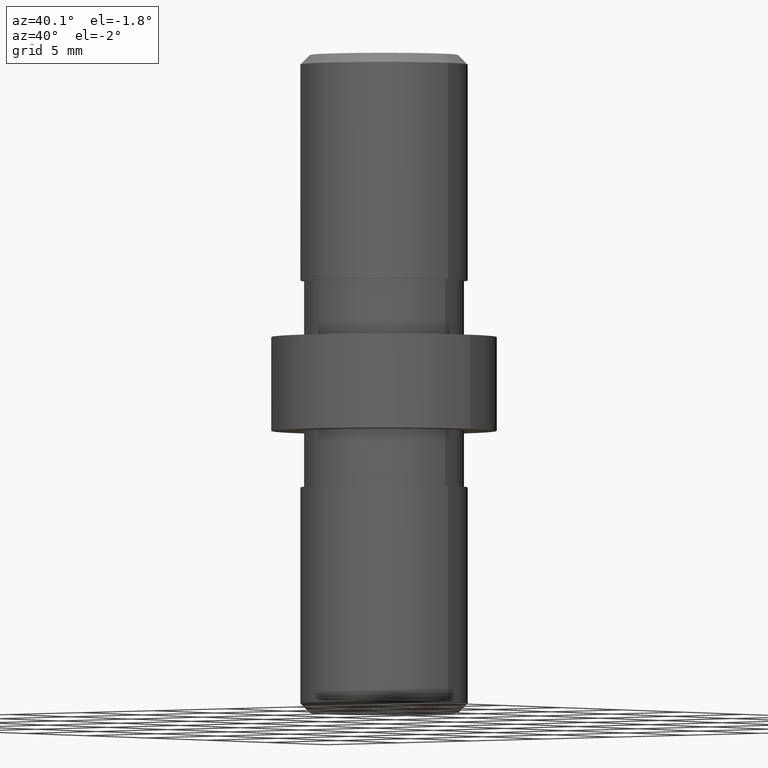
[diagram: clean part render]
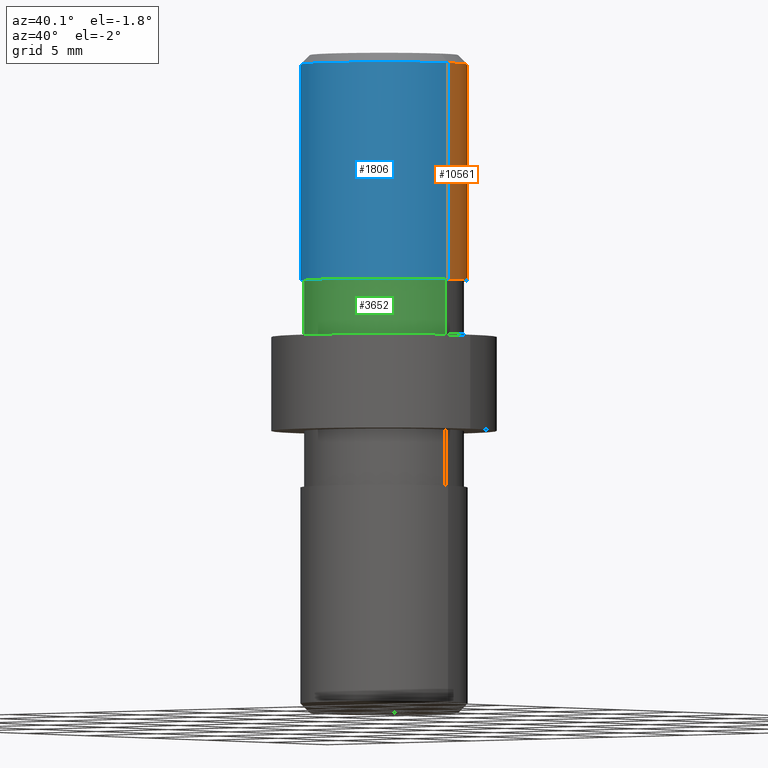
[diagram: same view with three faces highlighted in distinct colors, each labeled with its STEP entity id]
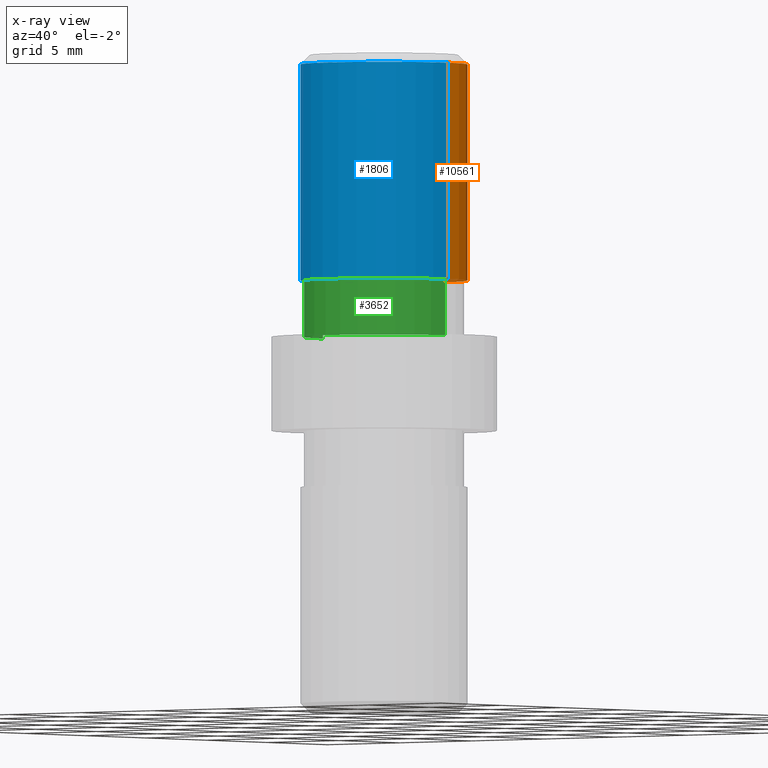
[diagram: x-ray of the same camera — body ghosted, the three highlighted faces saturated]
A machine part, auxiliary view with three faces highlighted in distinct colors.
The next image is the same camera in x-ray (body ghosted, the three faces saturated) — at least one of them is partly hidden behind the body in this view.
Their STEP definitions:

[orange] entity #10561 — the highlighted cylindrical surface (partial cylindrical patch) has radius 4.45 mm, axis along (-0, -0, -1).
#93 = ORIENTED_EDGE ( 'NONE', *, *, #10588, .F. ) ;
#503 = ORIENTED_EDGE ( 'NONE', *, *, #7556, .T. ) ;
#632 = CARTESIAN_POINT ( 'NONE',  ( 4.449999999999999289, -1.598164072887296760E-15, 5.499999999999998224 ) ) ;
#903 = DIRECTION ( 'NONE',  ( 1.000000000000000000, 0.000000000000000000, 0.000000000000000000 ) ) ;
#1424 = VECTOR ( 'NONE', #7498, 1000.000000000000000 ) ;
#1605 = VERTEX_POINT ( 'NONE', #11848 ) ;
#1797 = FACE_OUTER_BOUND ( 'NONE', #9500, .T. ) ;
#2090 = CARTESIAN_POINT ( 'NONE',  ( -4.449999999999999289, -2.143131898507868643E-15, -17.50000000000000000 ) ) ;
#2997 = EDGE_CURVE ( 'NONE', #8472, #7463, #7925, .T. ) ;
#4191 = CYLINDRICAL_SURFACE ( 'NONE', #7689, 4.449999999999999289 ) ;
#4203 = VERTEX_POINT ( 'NONE', #632 ) ;
#4276 = CARTESIAN_POINT ( 'NONE',  ( 0.000000000000000000, -2.143131898507868643E-15, 5.499999999999998224 ) ) ;
#4322 = CARTESIAN_POINT ( 'NONE',  ( 4.449999999999999289, -1.598164072887296760E-15, -17.50000000000000000 ) ) ;
#4621 = AXIS2_PLACEMENT_3D ( 'NONE', #11736, #9395, #903 ) ;
#4699 = ORIENTED_EDGE ( 'NONE', *, *, #13395, .T. ) ;
#4925 = LINE ( 'NONE', #4322, #13234 ) ;
#6449 = DIRECTION ( 'NONE',  ( -0.000000000000000000, -0.000000000000000000, -1.000000000000000000 ) ) ;
#7463 = VERTEX_POINT ( 'NONE', #10021 ) ;
#7498 = DIRECTION ( 'NONE',  ( -0.000000000000000000, -0.000000000000000000, -1.000000000000000000 ) ) ;
#7556 = EDGE_CURVE ( 'NONE', #1605, #4203, #4925, .T. ) ;
#7599 = CIRCLE ( 'NONE', #4621, 4.449999999999999289 ) ;
#7686 = DIRECTION ( 'NONE',  ( -0.000000000000000000, -0.000000000000000000, -1.000000000000000000 ) ) ;
#7689 = AXIS2_PLACEMENT_3D ( 'NONE', #10667, #6449, #13013 ) ;
#7925 = LINE ( 'NONE', #2090, #1424 ) ;
#8472 = VERTEX_POINT ( 'NONE', #12406 ) ;
#9395 = DIRECTION ( 'NONE',  ( -0.000000000000000000, -0.000000000000000000, -1.000000000000000000 ) ) ;
#9500 = EDGE_LOOP ( 'NONE', ( #4699, #503, #93, #12823 ) ) ;
#9776 = DIRECTION ( 'NONE',  ( -0.000000000000000000, -0.000000000000000000, -1.000000000000000000 ) ) ;
#10021 = CARTESIAN_POINT ( 'NONE',  ( -4.449999999999999289, -2.143131898507868643E-15, 5.499999999999998224 ) ) ;
#10117 = CIRCLE ( 'NONE', #10354, 4.449999999999999289 ) ;
#10354 = AXIS2_PLACEMENT_3D ( 'NONE', #4276, #9776, #11876 ) ;
#10561 = ADVANCED_FACE ( 'NONE', ( #1797 ), #4191, .T. ) ;
#10588 = EDGE_CURVE ( 'NONE', #7463, #4203, #10117, .T. ) ;
#10667 = CARTESIAN_POINT ( 'NONE',  ( 0.000000000000000000, -2.143131898507868643E-15, -17.50000000000000000 ) ) ;
#11736 = CARTESIAN_POINT ( 'NONE',  ( 0.000000000000000000, -2.143131898507868643E-15, 17.00000000000000000 ) ) ;
#11848 = CARTESIAN_POINT ( 'NONE',  ( 4.449999999999999289, -1.598164072887296760E-15, 17.00000000000000000 ) ) ;
#11876 = DIRECTION ( 'NONE',  ( -1.000000000000000000, 0.000000000000000000, 0.000000000000000000 ) ) ;
#12406 = CARTESIAN_POINT ( 'NONE',  ( -4.449999999999999289, -2.143131898507868643E-15, 17.00000000000000000 ) ) ;
#12823 = ORIENTED_EDGE ( 'NONE', *, *, #2997, .F. ) ;
#13013 = DIRECTION ( 'NONE',  ( -1.000000000000000000, 0.000000000000000000, 0.000000000000000000 ) ) ;
#13234 = VECTOR ( 'NONE', #7686, 1000.000000000000000 ) ;
#13395 = EDGE_CURVE ( 'NONE', #8472, #1605, #7599, .T. ) ;

[blue] entity #1806 — the highlighted cylindrical surface (partial cylindrical patch) has radius 4.45 mm, axis along (-0, -0, -1).
#632 = CARTESIAN_POINT ( 'NONE',  ( 4.449999999999999289, -1.598164072887296760E-15, 5.499999999999998224 ) ) ;
#1008 = EDGE_LOOP ( 'NONE', ( #6067, #9104, #11811, #10913 ) ) ;
#1146 = DIRECTION ( 'NONE',  ( -1.000000000000000000, 0.000000000000000000, 0.000000000000000000 ) ) ;
#1424 = VECTOR ( 'NONE', #7498, 1000.000000000000000 ) ;
#1605 = VERTEX_POINT ( 'NONE', #11848 ) ;
#1628 = CARTESIAN_POINT ( 'NONE',  ( 0.000000000000000000, -2.143131898507868643E-15, -17.50000000000000000 ) ) ;
#1707 = CIRCLE ( 'NONE', #10213, 4.449999999999999289 ) ;
#1765 = DIRECTION ( 'NONE',  ( -0.000000000000000000, -0.000000000000000000, -1.000000000000000000 ) ) ;
#1806 = ADVANCED_FACE ( 'NONE', ( #13475 ), #9552, .T. ) ;
#1855 = DIRECTION ( 'NONE',  ( -1.000000000000000000, 0.000000000000000000, 0.000000000000000000 ) ) ;
#2090 = CARTESIAN_POINT ( 'NONE',  ( -4.449999999999999289, -2.143131898507868643E-15, -17.50000000000000000 ) ) ;
#2132 = CARTESIAN_POINT ( 'NONE',  ( 0.000000000000000000, -2.143131898507868643E-15, 17.00000000000000000 ) ) ;
#2997 = EDGE_CURVE ( 'NONE', #8472, #7463, #7925, .T. ) ;
#3223 = DIRECTION ( 'NONE',  ( -0.000000000000000000, -0.000000000000000000, -1.000000000000000000 ) ) ;
#3478 = CARTESIAN_POINT ( 'NONE',  ( 0.000000000000000000, -2.143131898507868643E-15, 5.499999999999998224 ) ) ;
#4203 = VERTEX_POINT ( 'NONE', #632 ) ;
#4322 = CARTESIAN_POINT ( 'NONE',  ( 4.449999999999999289, -1.598164072887296760E-15, -17.50000000000000000 ) ) ;
#4925 = LINE ( 'NONE', #4322, #13234 ) ;
#5248 = EDGE_CURVE ( 'NONE', #1605, #8472, #1707, .T. ) ;
#6067 = ORIENTED_EDGE ( 'NONE', *, *, #7556, .F. ) ;
#7412 = AXIS2_PLACEMENT_3D ( 'NONE', #3478, #7707, #1146 ) ;
#7463 = VERTEX_POINT ( 'NONE', #10021 ) ;
#7498 = DIRECTION ( 'NONE',  ( -0.000000000000000000, -0.000000000000000000, -1.000000000000000000 ) ) ;
#7556 = EDGE_CURVE ( 'NONE', #1605, #4203, #4925, .T. ) ;
#7686 = DIRECTION ( 'NONE',  ( -0.000000000000000000, -0.000000000000000000, -1.000000000000000000 ) ) ;
#7707 = DIRECTION ( 'NONE',  ( -0.000000000000000000, -0.000000000000000000, -1.000000000000000000 ) ) ;
#7925 = LINE ( 'NONE', #2090, #1424 ) ;
#8472 = VERTEX_POINT ( 'NONE', #12406 ) ;
#9104 = ORIENTED_EDGE ( 'NONE', *, *, #5248, .T. ) ;
#9450 = CIRCLE ( 'NONE', #7412, 4.449999999999999289 ) ;
#9552 = CYLINDRICAL_SURFACE ( 'NONE', #12289, 4.449999999999999289 ) ;
#9672 = DIRECTION ( 'NONE',  ( 1.000000000000000000, 0.000000000000000000, 0.000000000000000000 ) ) ;
#10021 = CARTESIAN_POINT ( 'NONE',  ( -4.449999999999999289, -2.143131898507868643E-15, 5.499999999999998224 ) ) ;
#10131 = EDGE_CURVE ( 'NONE', #4203, #7463, #9450, .T. ) ;
#10213 = AXIS2_PLACEMENT_3D ( 'NONE', #2132, #3223, #9672 ) ;
#10913 = ORIENTED_EDGE ( 'NONE', *, *, #10131, .F. ) ;
#11811 = ORIENTED_EDGE ( 'NONE', *, *, #2997, .T. ) ;
#11848 = CARTESIAN_POINT ( 'NONE',  ( 4.449999999999999289, -1.598164072887296760E-15, 17.00000000000000000 ) ) ;
#12289 = AXIS2_PLACEMENT_3D ( 'NONE', #1628, #1765, #1855 ) ;
#12406 = CARTESIAN_POINT ( 'NONE',  ( -4.449999999999999289, -2.143131898507868643E-15, 17.00000000000000000 ) ) ;
#13234 = VECTOR ( 'NONE', #7686, 1000.000000000000000 ) ;
#13475 = FACE_OUTER_BOUND ( 'NONE', #1008, .T. ) ;

[green] entity #3652 — the highlighted cylindrical surface (partial cylindrical patch) has radius 4.25 mm, axis along (-0, -0, -1).
#61 = AXIS2_PLACEMENT_3D ( 'NONE', #13862, #7425, #7523 ) ;
#846 = ORIENTED_EDGE ( 'NONE', *, *, #10789, .F. ) ;
#1421 = CARTESIAN_POINT ( 'NONE',  ( 0.000000000000000000, -2.143131898507868643E-15, 2.499999999999998668 ) ) ;
#1674 = EDGE_CURVE ( 'NONE', #8316, #8799, #7046, .T. ) ;
#2431 = DIRECTION ( 'NONE',  ( -0.000000000000000000, -0.000000000000000000, -1.000000000000000000 ) ) ;
#2547 = CARTESIAN_POINT ( 'NONE',  ( 0.000000000000000000, -2.143131898507868643E-15, -17.50000000000000000 ) ) ;
#3074 = ORIENTED_EDGE ( 'NONE', *, *, #12246, .F. ) ;
#3652 = ADVANCED_FACE ( 'NONE', ( #6715 ), #9883, .T. ) ;
#3936 = CARTESIAN_POINT ( 'NONE',  ( 4.249999999999998224, -1.622657008870243868E-15, 5.499999999999998224 ) ) ;
#4267 = DIRECTION ( 'NONE',  ( -0.000000000000000000, -0.000000000000000000, -1.000000000000000000 ) ) ;
#4520 = CARTESIAN_POINT ( 'NONE',  ( -4.249999999999998224, -2.143131898507868643E-15, -17.50000000000000000 ) ) ;
#4746 = CARTESIAN_POINT ( 'NONE',  ( -4.249999999999998224, -2.143131898507868643E-15, 5.499999999999998224 ) ) ;
#5221 = CIRCLE ( 'NONE', #6943, 4.249999999999998224 ) ;
#5859 = DIRECTION ( 'NONE',  ( -0.000000000000000000, -0.000000000000000000, -1.000000000000000000 ) ) ;
#6032 = VECTOR ( 'NONE', #2431, 1000.000000000000000 ) ;
#6149 = AXIS2_PLACEMENT_3D ( 'NONE', #2547, #12421, #7997 ) ;
#6715 = FACE_OUTER_BOUND ( 'NONE', #10377, .T. ) ;
#6943 = AXIS2_PLACEMENT_3D ( 'NONE', #1421, #5859, #8185 ) ;
#7046 = CIRCLE ( 'NONE', #61, 4.249999999999998224 ) ;
#7425 = DIRECTION ( 'NONE',  ( -0.000000000000000000, -0.000000000000000000, -1.000000000000000000 ) ) ;
#7523 = DIRECTION ( 'NONE',  ( -1.000000000000000000, 0.000000000000000000, 0.000000000000000000 ) ) ;
#7997 = DIRECTION ( 'NONE',  ( -1.000000000000000000, 0.000000000000000000, 0.000000000000000000 ) ) ;
#8115 = ORIENTED_EDGE ( 'NONE', *, *, #1674, .T. ) ;
#8185 = DIRECTION ( 'NONE',  ( -1.000000000000000000, 0.000000000000000000, 0.000000000000000000 ) ) ;
#8316 = VERTEX_POINT ( 'NONE', #3936 ) ;
#8799 = VERTEX_POINT ( 'NONE', #4746 ) ;
#9619 = CARTESIAN_POINT ( 'NONE',  ( 4.249999999999998224, -1.622657008870243868E-15, -17.50000000000000000 ) ) ;
#9750 = LINE ( 'NONE', #4520, #6032 ) ;
#9883 = CYLINDRICAL_SURFACE ( 'NONE', #6149, 4.249999999999998224 ) ;
#10210 = VERTEX_POINT ( 'NONE', #10248 ) ;
#10248 = CARTESIAN_POINT ( 'NONE',  ( -4.249999999999998224, -2.143131898507868643E-15, 2.499999999999998668 ) ) ;
#10377 = EDGE_LOOP ( 'NONE', ( #3074, #8115, #11825, #846 ) ) ;
#10789 = EDGE_CURVE ( 'NONE', #13733, #10210, #5221, .T. ) ;
#11391 = CARTESIAN_POINT ( 'NONE',  ( 4.249999999999998224, -1.622657008870243868E-15, 2.499999999999998668 ) ) ;
#11825 = ORIENTED_EDGE ( 'NONE', *, *, #13589, .T. ) ;
#12246 = EDGE_CURVE ( 'NONE', #8316, #13733, #12339, .T. ) ;
#12339 = LINE ( 'NONE', #9619, #13826 ) ;
#12421 = DIRECTION ( 'NONE',  ( -0.000000000000000000, -0.000000000000000000, -1.000000000000000000 ) ) ;
#13589 = EDGE_CURVE ( 'NONE', #8799, #10210, #9750, .T. ) ;
#13733 = VERTEX_POINT ( 'NONE', #11391 ) ;
#13826 = VECTOR ( 'NONE', #4267, 1000.000000000000000 ) ;
#13862 = CARTESIAN_POINT ( 'NONE',  ( 0.000000000000000000, -2.143131898507868643E-15, 5.499999999999998224 ) ) ;